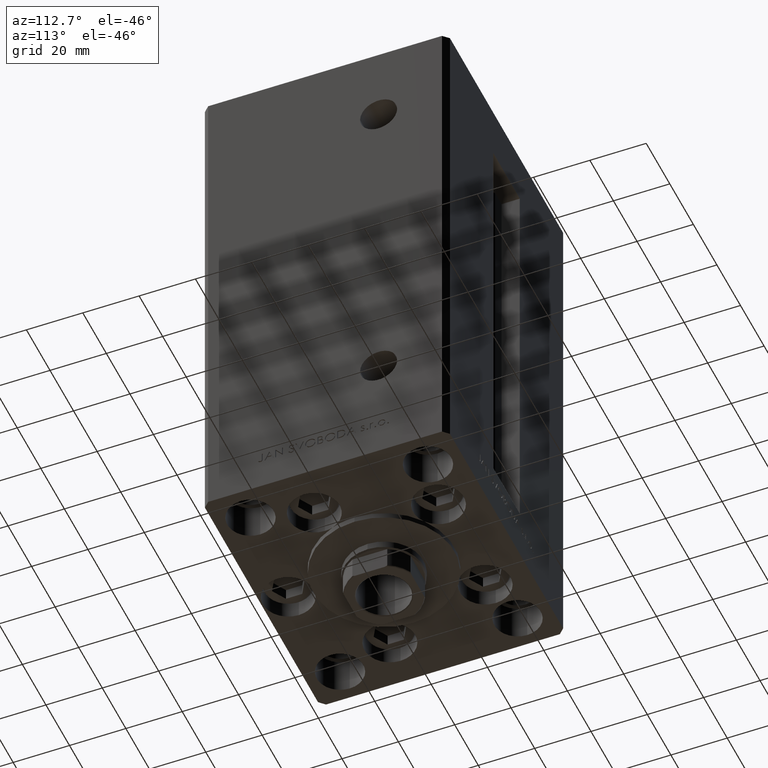
[diagram: clean part render]
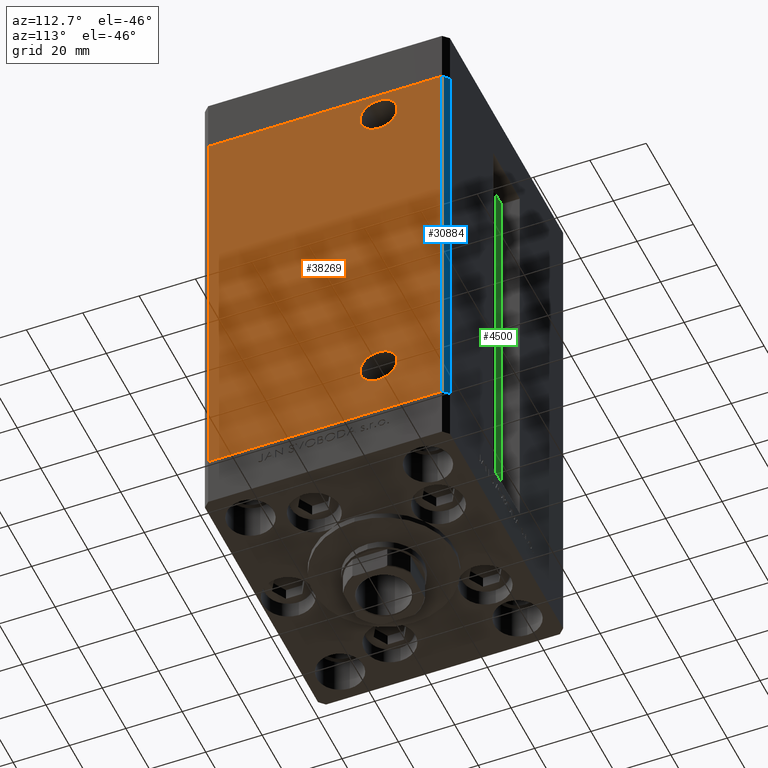
[diagram: same view with three faces highlighted in distinct colors, each labeled with its STEP entity id]
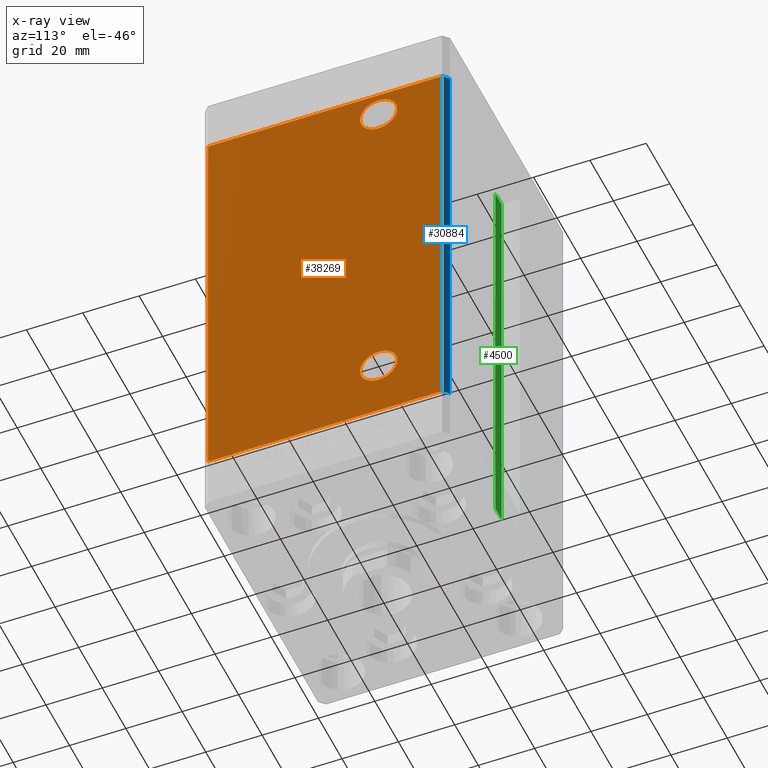
[diagram: x-ray of the same camera — body ghosted, the three highlighted faces saturated]
A machine part, auxiliary view with three faces highlighted in distinct colors.
The next image is the same camera in x-ray (body ghosted, the three faces saturated) — at least one of them is partly hidden behind the body in this view.
Their STEP definitions:

[orange] entity #38269 — the highlighted planar face has unit normal (1, -0, 0).
#52 = CARTESIAN_POINT ( 'NONE',  ( 49.99999999999998579, -41.49999999999999289, 0.000000000000000000 ) ) ;
#927 = ORIENTED_EDGE ( 'NONE', *, *, #17203, .F. ) ;
#1208 = VECTOR ( 'NONE', #31563, 1000.000000000000000 ) ;
#2153 = VERTEX_POINT ( 'NONE', #24962 ) ;
#2440 = CARTESIAN_POINT ( 'NONE',  ( 50.00000000000001421, 41.49999999999999289, 148.5000000000000000 ) ) ;
#2716 = CARTESIAN_POINT ( 'NONE',  ( 50.00000000000000711, 19.00000000000000000, 139.4999999999999716 ) ) ;
#4534 = DIRECTION ( 'NONE',  ( -3.344045254895050973E-16, -1.000000000000000000, 0.000000000000000000 ) ) ;
#6431 = ORIENTED_EDGE ( 'NONE', *, *, #7607, .T. ) ;
#6569 = AXIS2_PLACEMENT_3D ( 'NONE', #26649, #7595, #22885 ) ;
#6891 = CARTESIAN_POINT ( 'NONE',  ( 50.00000000000000711, 25.58000000000001606, 139.4999999999999716 ) ) ;
#7595 = DIRECTION ( 'NONE',  ( 1.000000000000000000, -2.275047181608927644E-16, 0.000000000000000000 ) ) ;
#7607 = EDGE_CURVE ( 'NONE', #32498, #19679, #38598, .T. ) ;
#9716 = FACE_BOUND ( 'NONE', #11886, .T. ) ;
#9786 = CARTESIAN_POINT ( 'NONE',  ( 50.00000000000000711, 12.41999999999999282, 20.99999999999998934 ) ) ;
#11581 = ORIENTED_EDGE ( 'NONE', *, *, #13410, .F. ) ;
#11873 = CARTESIAN_POINT ( 'NONE',  ( 50.00000000000000711, 19.00000000000000000, 20.99999999999998934 ) ) ;
#11886 = EDGE_LOOP ( 'NONE', ( #927, #11581 ) ) ;
#12318 = EDGE_LOOP ( 'NONE', ( #16520, #17533 ) ) ;
#13410 = EDGE_CURVE ( 'NONE', #15256, #16478, #28184, .T. ) ;
#13469 = PLANE ( 'NONE',  #48805 ) ;
#13611 = LINE ( 'NONE', #21879, #36262 ) ;
#13613 = CARTESIAN_POINT ( 'NONE',  ( 50.00000000000001421, 41.49999999999999289, 148.5000000000000000 ) ) ;
#14035 = EDGE_LOOP ( 'NONE', ( #37207, #18709, #6431, #29132 ) ) ;
#14578 = VERTEX_POINT ( 'NONE', #9786 ) ;
#14742 = DIRECTION ( 'NONE',  ( 0.000000000000000000, 1.000000000000000000, 0.000000000000000000 ) ) ;
#15256 = VERTEX_POINT ( 'NONE', #36259 ) ;
#15410 = DIRECTION ( 'NONE',  ( 1.000000000000000000, -2.275047181608927644E-16, 0.000000000000000000 ) ) ;
#15438 = EDGE_CURVE ( 'NONE', #32498, #48266, #13611, .T. ) ;
#16478 = VERTEX_POINT ( 'NONE', #6891 ) ;
#16520 = ORIENTED_EDGE ( 'NONE', *, *, #27425, .F. ) ;
#17203 = EDGE_CURVE ( 'NONE', #16478, #15256, #40356, .T. ) ;
#17533 = ORIENTED_EDGE ( 'NONE', *, *, #46997, .F. ) ;
#18032 = DIRECTION ( 'NONE',  ( 1.000000000000000000, -2.275047181608927644E-16, 0.000000000000000000 ) ) ;
#18152 = CARTESIAN_POINT ( 'NONE',  ( 49.99999999999998579, -41.49999999999999289, 148.5000000000000000 ) ) ;
#18709 = ORIENTED_EDGE ( 'NONE', *, *, #15438, .F. ) ;
#19620 = VECTOR ( 'NONE', #4534, 1000.000000000000000 ) ;
#19679 = VERTEX_POINT ( 'NONE', #18152 ) ;
#20158 = DIRECTION ( 'NONE',  ( 0.000000000000000000, 1.000000000000000000, 0.000000000000000000 ) ) ;
#21752 = FACE_OUTER_BOUND ( 'NONE', #14035, .T. ) ;
#21779 = VECTOR ( 'NONE', #42361, 1000.000000000000000 ) ;
#21879 = CARTESIAN_POINT ( 'NONE',  ( 50.00000000000001421, 41.49999999999999289, 148.5000000000000000 ) ) ;
#22885 = DIRECTION ( 'NONE',  ( 0.000000000000000000, 1.000000000000000000, 0.000000000000000000 ) ) ;
#22901 = AXIS2_PLACEMENT_3D ( 'NONE', #11873, #15410, #20158 ) ;
#23761 = CARTESIAN_POINT ( 'NONE',  ( 49.99999999999998579, -41.49999999999999289, 148.5000000000000000 ) ) ;
#24200 = EDGE_CURVE ( 'NONE', #48266, #28576, #39155, .T. ) ;
#24630 = DIRECTION ( 'NONE',  ( -0.000000000000000000, -0.000000000000000000, -1.000000000000000000 ) ) ;
#24962 = CARTESIAN_POINT ( 'NONE',  ( 50.00000000000000711, 25.58000000000000540, 20.99999999999998934 ) ) ;
#25030 = CARTESIAN_POINT ( 'NONE',  ( 50.00000000000000711, 19.00000000000000000, 20.99999999999998934 ) ) ;
#25455 = EDGE_CURVE ( 'NONE', #19679, #28576, #35573, .T. ) ;
#26649 = CARTESIAN_POINT ( 'NONE',  ( 50.00000000000000711, 19.00000000000000000, 139.4999999999999716 ) ) ;
#26683 = CARTESIAN_POINT ( 'NONE',  ( 50.00000000000001421, 41.49999999999999289, 0.000000000000000000 ) ) ;
#27425 = EDGE_CURVE ( 'NONE', #2153, #14578, #45352, .T. ) ;
#27606 = CARTESIAN_POINT ( 'NONE',  ( 50.00000000000001421, 41.49999999999999289, 0.000000000000000000 ) ) ;
#28184 = CIRCLE ( 'NONE', #6569, 6.580000000000016058 ) ;
#28576 = VERTEX_POINT ( 'NONE', #52 ) ;
#29132 = ORIENTED_EDGE ( 'NONE', *, *, #25455, .T. ) ;
#31563 = DIRECTION ( 'NONE',  ( -0.000000000000000000, -0.000000000000000000, -1.000000000000000000 ) ) ;
#32347 = AXIS2_PLACEMENT_3D ( 'NONE', #2716, #18032, #14742 ) ;
#32498 = VERTEX_POINT ( 'NONE', #13613 ) ;
#32794 = CIRCLE ( 'NONE', #48013, 6.580000000000006288 ) ;
#35063 = CARTESIAN_POINT ( 'NONE',  ( 50.00000000000001421, 41.49999999999999289, 148.5000000000000000 ) ) ;
#35573 = LINE ( 'NONE', #23761, #1208 ) ;
#36073 = DIRECTION ( 'NONE',  ( 1.000000000000000000, -2.275047181608927644E-16, 0.000000000000000000 ) ) ;
#36259 = CARTESIAN_POINT ( 'NONE',  ( 50.00000000000000711, 12.41999999999998394, 139.4999999999999716 ) ) ;
#36262 = VECTOR ( 'NONE', #24630, 1000.000000000000000 ) ;
#36328 = DIRECTION ( 'NONE',  ( 0.000000000000000000, 1.000000000000000000, 0.000000000000000000 ) ) ;
#36556 = FACE_BOUND ( 'NONE', #12318, .T. ) ;
#37207 = ORIENTED_EDGE ( 'NONE', *, *, #24200, .F. ) ;
#38269 = ADVANCED_FACE ( 'NONE', ( #36556, #9716, #21752 ), #13469, .T. ) ;
#38598 = LINE ( 'NONE', #35063, #21779 ) ;
#39155 = LINE ( 'NONE', #27606, #19620 ) ;
#40356 = CIRCLE ( 'NONE', #32347, 6.580000000000016058 ) ;
#42361 = DIRECTION ( 'NONE',  ( -3.344045254895050973E-16, -1.000000000000000000, 0.000000000000000000 ) ) ;
#44347 = DIRECTION ( 'NONE',  ( 1.000000000000000000, -3.344045254895050480E-16, 0.000000000000000000 ) ) ;
#45352 = CIRCLE ( 'NONE', #22901, 6.580000000000006288 ) ;
#46997 = EDGE_CURVE ( 'NONE', #14578, #2153, #32794, .T. ) ;
#47333 = DIRECTION ( 'NONE',  ( 3.344045254895050480E-16, 1.000000000000000000, 0.000000000000000000 ) ) ;
#48013 = AXIS2_PLACEMENT_3D ( 'NONE', #25030, #36073, #36328 ) ;
#48266 = VERTEX_POINT ( 'NONE', #26683 ) ;
#48805 = AXIS2_PLACEMENT_3D ( 'NONE', #2440, #44347, #47333 ) ;

[blue] entity #30884 — the highlighted planar face has unit normal (0.7071, 0.7071, 0).
#158 = ORIENTED_EDGE ( 'NONE', *, *, #47975, .F. ) ;
#180 = VERTEX_POINT ( 'NONE', #22468 ) ;
#617 = VECTOR ( 'NONE', #22222, 1000.000000000000000 ) ;
#2981 = ORIENTED_EDGE ( 'NONE', *, *, #19325, .F. ) ;
#3172 = PLANE ( 'NONE',  #43111 ) ;
#10208 = CARTESIAN_POINT ( 'NONE',  ( 48.00000000000000711, 43.50000000000000000, 148.5000000000000000 ) ) ;
#10699 = DIRECTION ( 'NONE',  ( 0.7071067811865463515, 0.7071067811865487940, -0.000000000000000000 ) ) ;
#13611 = LINE ( 'NONE', #21879, #36262 ) ;
#13613 = CARTESIAN_POINT ( 'NONE',  ( 50.00000000000001421, 41.49999999999999289, 148.5000000000000000 ) ) ;
#13733 = DIRECTION ( 'NONE',  ( -0.7071067811865487940, 0.7071067811865463515, 0.000000000000000000 ) ) ;
#15438 = EDGE_CURVE ( 'NONE', #32498, #48266, #13611, .T. ) ;
#18162 = EDGE_LOOP ( 'NONE', ( #2981, #158, #49281, #42114 ) ) ;
#18507 = LINE ( 'NONE', #41099, #35165 ) ;
#19325 = EDGE_CURVE ( 'NONE', #34407, #48266, #48321, .T. ) ;
#21879 = CARTESIAN_POINT ( 'NONE',  ( 50.00000000000001421, 41.49999999999999289, 148.5000000000000000 ) ) ;
#22222 = DIRECTION ( 'NONE',  ( 0.7071067811865487940, -0.7071067811865463515, 0.000000000000000000 ) ) ;
#22468 = CARTESIAN_POINT ( 'NONE',  ( 48.00000000000000711, 43.50000000000000000, 148.5000000000000000 ) ) ;
#24630 = DIRECTION ( 'NONE',  ( -0.000000000000000000, -0.000000000000000000, -1.000000000000000000 ) ) ;
#26683 = CARTESIAN_POINT ( 'NONE',  ( 50.00000000000001421, 41.49999999999999289, 0.000000000000000000 ) ) ;
#30884 = ADVANCED_FACE ( 'NONE', ( #48585 ), #3172, .T. ) ;
#30910 = EDGE_CURVE ( 'NONE', #180, #32498, #40586, .T. ) ;
#32498 = VERTEX_POINT ( 'NONE', #13613 ) ;
#34254 = CARTESIAN_POINT ( 'NONE',  ( 48.00000000000000711, 43.50000000000000000, 0.000000000000000000 ) ) ;
#34407 = VERTEX_POINT ( 'NONE', #34254 ) ;
#35165 = VECTOR ( 'NONE', #37815, 1000.000000000000000 ) ;
#36262 = VECTOR ( 'NONE', #24630, 1000.000000000000000 ) ;
#37220 = VECTOR ( 'NONE', #44324, 1000.000000000000000 ) ;
#37535 = CARTESIAN_POINT ( 'NONE',  ( 48.00000000000000711, 43.50000000000000000, 148.5000000000000000 ) ) ;
#37815 = DIRECTION ( 'NONE',  ( -0.000000000000000000, -0.000000000000000000, -1.000000000000000000 ) ) ;
#40060 = CARTESIAN_POINT ( 'NONE',  ( 48.00000000000000711, 43.50000000000000000, 0.000000000000000000 ) ) ;
#40586 = LINE ( 'NONE', #10208, #617 ) ;
#41099 = CARTESIAN_POINT ( 'NONE',  ( 48.00000000000000711, 43.50000000000000000, 148.5000000000000000 ) ) ;
#42114 = ORIENTED_EDGE ( 'NONE', *, *, #15438, .T. ) ;
#43111 = AXIS2_PLACEMENT_3D ( 'NONE', #37535, #10699, #13733 ) ;
#44324 = DIRECTION ( 'NONE',  ( 0.7071067811865487940, -0.7071067811865463515, 0.000000000000000000 ) ) ;
#47975 = EDGE_CURVE ( 'NONE', #180, #34407, #18507, .T. ) ;
#48266 = VERTEX_POINT ( 'NONE', #26683 ) ;
#48321 = LINE ( 'NONE', #40060, #37220 ) ;
#48585 = FACE_OUTER_BOUND ( 'NONE', #18162, .T. ) ;
#49281 = ORIENTED_EDGE ( 'NONE', *, *, #30910, .T. ) ;

[green] entity #4500 — the highlighted planar face has unit normal (0, -1, 0).
#245 = VERTEX_POINT ( 'NONE', #20682 ) ;
#1306 = VECTOR ( 'NONE', #17474, 1000.000000000000000 ) ;
#1696 = CARTESIAN_POINT ( 'NONE',  ( 0.000000000000000000, 36.99999999999999289, 148.5000000000000000 ) ) ;
#4500 = ADVANCED_FACE ( 'NONE', ( #12509 ), #19548, .F. ) ;
#4525 = ORIENTED_EDGE ( 'NONE', *, *, #34934, .T. ) ;
#4702 = DIRECTION ( 'NONE',  ( -1.000000000000000000, 0.000000000000000000, 0.000000000000000000 ) ) ;
#5160 = VECTOR ( 'NONE', #4702, 1000.000000000000000 ) ;
#5932 = CARTESIAN_POINT ( 'NONE',  ( -6.183333333333997928, 36.99999999999999289, 0.000000000000000000 ) ) ;
#10795 = VERTEX_POINT ( 'NONE', #11712 ) ;
#11712 = CARTESIAN_POINT ( 'NONE',  ( -6.183333333333997928, 36.99999999999999289, 0.000000000000000000 ) ) ;
#12480 = LINE ( 'NONE', #1696, #5160 ) ;
#12509 = FACE_OUTER_BOUND ( 'NONE', #46619, .T. ) ;
#12986 = CARTESIAN_POINT ( 'NONE',  ( -11.24999999999999822, 36.99999999999999289, 0.000000000000000000 ) ) ;
#15844 = VERTEX_POINT ( 'NONE', #45158 ) ;
#16283 = DIRECTION ( 'NONE',  ( 0.000000000000000000, 0.000000000000000000, -1.000000000000000000 ) ) ;
#17014 = LINE ( 'NONE', #12986, #33470 ) ;
#17474 = DIRECTION ( 'NONE',  ( -0.000000000000000000, -0.000000000000000000, 1.000000000000000000 ) ) ;
#19548 = PLANE ( 'NONE',  #30469 ) ;
#19983 = ORIENTED_EDGE ( 'NONE', *, *, #22496, .F. ) ;
#20682 = CARTESIAN_POINT ( 'NONE',  ( -11.24999999999999822, 36.99999999999999289, 148.5000000000000000 ) ) ;
#22496 = EDGE_CURVE ( 'NONE', #47890, #245, #12480, .T. ) ;
#23948 = LINE ( 'NONE', #43293, #27828 ) ;
#27828 = VECTOR ( 'NONE', #39530, 1000.000000000000000 ) ;
#27871 = EDGE_CURVE ( 'NONE', #10795, #47890, #40559, .T. ) ;
#30469 = AXIS2_PLACEMENT_3D ( 'NONE', #39365, #38858, #16283 ) ;
#33470 = VECTOR ( 'NONE', #39837, 1000.000000000000000 ) ;
#34934 = EDGE_CURVE ( 'NONE', #15844, #245, #17014, .T. ) ;
#35228 = EDGE_CURVE ( 'NONE', #15844, #10795, #23948, .T. ) ;
#36111 = ORIENTED_EDGE ( 'NONE', *, *, #35228, .F. ) ;
#37561 = CARTESIAN_POINT ( 'NONE',  ( -6.183333333333997928, 36.99999999999999289, 148.5000000000000000 ) ) ;
#38858 = DIRECTION ( 'NONE',  ( 0.000000000000000000, -1.000000000000000000, -0.000000000000000000 ) ) ;
#39365 = CARTESIAN_POINT ( 'NONE',  ( -6.183333333333997928, 36.99999999999999289, 0.000000000000000000 ) ) ;
#39530 = DIRECTION ( 'NONE',  ( 1.000000000000000000, -0.000000000000000000, -0.000000000000000000 ) ) ;
#39837 = DIRECTION ( 'NONE',  ( -0.000000000000000000, -0.000000000000000000, 1.000000000000000000 ) ) ;
#39976 = ORIENTED_EDGE ( 'NONE', *, *, #27871, .F. ) ;
#40559 = LINE ( 'NONE', #5932, #1306 ) ;
#43293 = CARTESIAN_POINT ( 'NONE',  ( -6.183333333333997928, 36.99999999999999289, 0.000000000000000000 ) ) ;
#45158 = CARTESIAN_POINT ( 'NONE',  ( -11.24999999999999822, 36.99999999999999289, 0.000000000000000000 ) ) ;
#46619 = EDGE_LOOP ( 'NONE', ( #39976, #36111, #4525, #19983 ) ) ;
#47890 = VERTEX_POINT ( 'NONE', #37561 ) ;